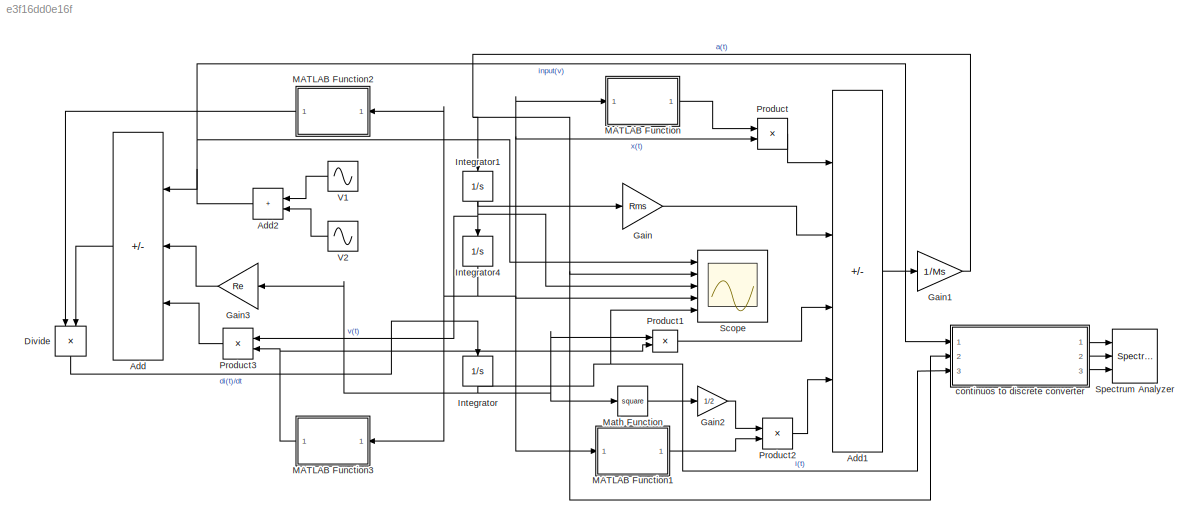
MODEL slx_e3f16dd0e16f
KIND model
CONFIG AbsTol = auto
CONFIG EnableMultiTasking = off
CONFIG FixedStep = auto
CONFIG MaxStep = auto
CONFIG MinStep = auto
CONFIG RelTol = 1e-3
CONFIG SampleTimeConstraint = Unconstrained
CONFIG SolverName = VariableStepAuto
CONFIG StartTime = 0.0
CONFIG StopTime = 4.5
WORKSPACE source: mxarray member
WORKSPACE Ms = 8e-06
WORKSPACE Re = 31.75
WORKSPACE Rms = 0.09
BLOCK [Sum] Add
  IconShape = rectangular
  Inputs = +--
  NameLocation = top
  Ports = [3, 1]
BLOCK [Sum] Add1
  IconShape = rectangular
  Inputs = --++
  Ports = [4, 1]
BLOCK [Sum] Add2
  IconShape = rectangular
  NameLocation = top
  Ports = [2, 1]
BLOCK [Product] Divide
  Inputs = /*
  NameLocation = left
  Ports = [2, 1]
BLOCK [Gain] Gain
  Gain = Rms
BLOCK [Gain] Gain1
  Gain = 1/Ms
BLOCK [Gain] Gain2
  Gain = 1/2
BLOCK [Gain] Gain3
  Gain = Re
  NameLocation = top
BLOCK [Integrator] Integrator
  NameLocation = left
  Ports = [1, 1]
BLOCK [Integrator] Integrator1
  NameLocation = left
  Ports = [1, 1]
BLOCK [Integrator] Integrator4
  NameLocation = left
  Ports = [1, 1]
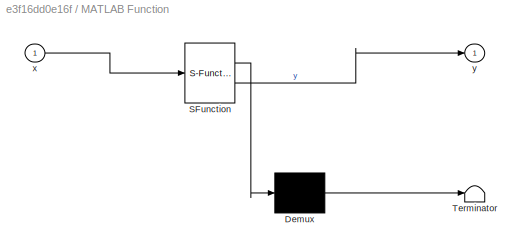
BLOCK [SubSystem] MATLAB Function
  ErrorFcn = Stateflow.Translate.translate
  PermitHierarchicalResolution = ExplicitOnly
  Ports = [1, 1]
  RequestExecContextInheritance = off
  SFBlockType = MATLAB Function
  TreatAsAtomicUnit = on
BLOCK [Demux] MATLAB Function/ Demux 
  Outputs = 1
  Ports = [1, 1]
BLOCK [S-Function] MATLAB Function/ SFunction 
  EnableBusSupport = on
  FunctionName = sf_sfun
  PortCounts = [1 2]
  Ports = [1, 2]
  SFcnIsStateOwnerBlock = off
  SFunctionDeploymentMode = off
  Tag = Stateflow S-Function 2
BLOCK [Terminator] MATLAB Function/ Terminator 
BLOCK [Inport] MATLAB Function/x
BLOCK [Outport] MATLAB Function/y
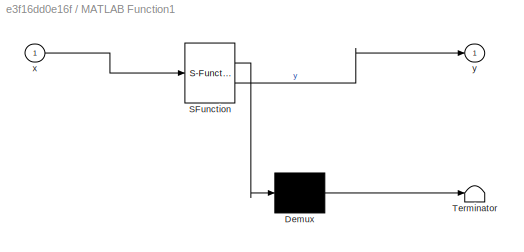
BLOCK [SubSystem] MATLAB Function1
  ErrorFcn = Stateflow.Translate.translate
  PermitHierarchicalResolution = ExplicitOnly
  Ports = [1, 1]
  RequestExecContextInheritance = off
  SFBlockType = MATLAB Function
  TreatAsAtomicUnit = on
BLOCK [Demux] MATLAB Function1/ Demux 
  Outputs = 1
  Ports = [1, 1]
BLOCK [S-Function] MATLAB Function1/ SFunction 
  EnableBusSupport = on
  FunctionName = sf_sfun
  PortCounts = [1 2]
  Ports = [1, 2]
  SFcnIsStateOwnerBlock = off
  SFunctionDeploymentMode = off
  Tag = Stateflow S-Function 1
BLOCK [Terminator] MATLAB Function1/ Terminator 
BLOCK [Inport] MATLAB Function1/x
BLOCK [Outport] MATLAB Function1/y
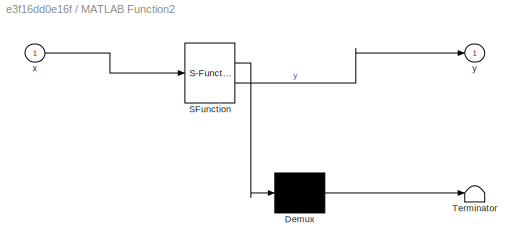
BLOCK [SubSystem] MATLAB Function2
  ErrorFcn = Stateflow.Translate.translate
  NameLocation = top
  PermitHierarchicalResolution = ExplicitOnly
  Ports = [1, 1]
  RequestExecContextInheritance = off
  SFBlockType = MATLAB Function
  TreatAsAtomicUnit = on
BLOCK [Demux] MATLAB Function2/ Demux 
  Outputs = 1
  Ports = [1, 1]
BLOCK [S-Function] MATLAB Function2/ SFunction 
  EnableBusSupport = on
  FunctionName = sf_sfun
  PortCounts = [1 2]
  Ports = [1, 2]
  SFcnIsStateOwnerBlock = off
  SFunctionDeploymentMode = off
  Tag = Stateflow S-Function 3
BLOCK [Terminator] MATLAB Function2/ Terminator 
BLOCK [Inport] MATLAB Function2/x
BLOCK [Outport] MATLAB Function2/y
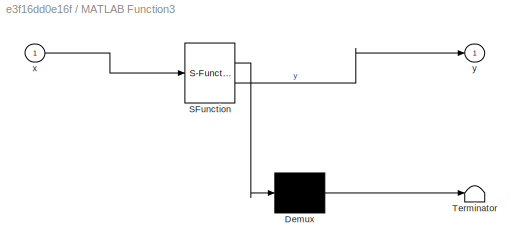
BLOCK [SubSystem] MATLAB Function3
  ErrorFcn = Stateflow.Translate.translate
  NameLocation = top
  PermitHierarchicalResolution = ExplicitOnly
  Ports = [1, 1]
  RequestExecContextInheritance = off
  SFBlockType = MATLAB Function
  TreatAsAtomicUnit = on
BLOCK [Demux] MATLAB Function3/ Demux 
  Outputs = 1
  Ports = [1, 1]
BLOCK [S-Function] MATLAB Function3/ SFunction 
  EnableBusSupport = on
  FunctionName = sf_sfun
  PortCounts = [1 2]
  Ports = [1, 2]
  SFcnIsStateOwnerBlock = off
  SFunctionDeploymentMode = off
  Tag = Stateflow S-Function 4
BLOCK [Terminator] MATLAB Function3/ Terminator 
BLOCK [Inport] MATLAB Function3/x
BLOCK [Outport] MATLAB Function3/y
BLOCK [Math] Math Function
  Operator = square
  Ports = [1, 1]
BLOCK [Product] Product
  Ports = [2, 1]
BLOCK [Product] Product1
  Ports = [2, 1]
BLOCK [Product] Product2
  Ports = [2, 1]
BLOCK [Product] Product3
  NameLocation = top
  Ports = [2, 1]
BLOCK [Scope] Scope
  Floating = off
  NumInputPorts = 5
  Ports = [5]
  ScopeSpecificationString = Simulink.scopes.TimeScopeBlockCfg('CurrentConfiguration', extmgr.ConfigurationSet(extmgr.Configuration('Core','General UI',true),extmgr.Configuration('Core','Source UI',true),extmgr.Configuration('Sources','WiredSimulink',true),extmgr.Configuration('Visuals','Time Domain',true,'SerializedDisplays',{struct('MinYLimReal','-1.47312','MaxYLimReal','1.47492','YLabelReal','','MinYLimMag','0.00000','MaxY...<+4237ch>
BLOCK [SpectrumAnalyzer] Spectrum Analyzer
  NumInputPorts = 3
  Ports = [3]
  ScopeSpecificationString = spbscopes.SpectrumAnalyzerBlockCfg('CurrentConfiguration', extmgr.ConfigurationSet(extmgr.Configuration('Core','General UI',true),extmgr.Configuration('Core','Source UI',true),extmgr.Configuration('Sources','WiredSimulink',true),extmgr.Configuration('Visuals','Spectrum',true,'AxesProperties',struct('Color',{[0 0 0],[0 0 0]},'XColor',{[0.686274509803922 0.686274509803922 0.686274509803922],[0.68627...<+2117ch>
BLOCK [Sin] V1
  Amplitude = 0.944
  Frequency = 2*pi*541
  NameLocation = top
  Ports = [0, 1]
  SampleTime = 0
BLOCK [Sin] V2
  Amplitude = 0.237
  Frequency = 2*pi*5447
  NameLocation = top
  Ports = [0, 1]
  SampleTime = 0
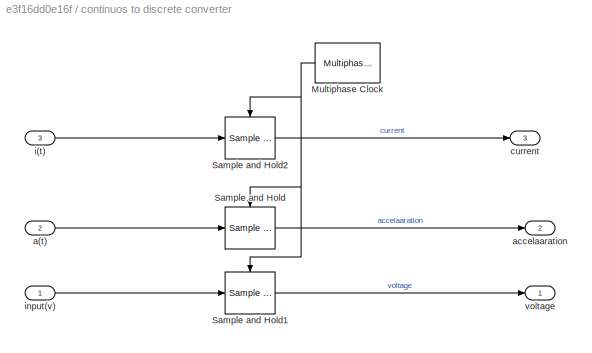
BLOCK [SubSystem] continuos to discrete converter 
  Ports = [3, 3]
  RequestExecContextInheritance = off
BLOCK [Reference] continuos to discrete converter /Multiphase Clock  REF=dspsrcs4/Multiphase Clock
  NameLocation = top
  Ports = [0, 1]
  SourceBlock = dspsrcs4/Multiphase Clock
  SourceProductBaseCode = DS
  SourceType = Multiphase Clock
BLOCK [Reference] continuos to discrete converter /Sample and Hold  REF=dspsigops/Sample
and Hold
  Ports = [1, 1, 0, 1]
  SourceBlock = dspsigops/Sample\nand Hold
  SourceProductBaseCode = DS
  SourceType = Sample and Hold
BLOCK [Reference] continuos to discrete converter /Sample and Hold1  REF=dspsigops/Sample
and Hold
  Ports = [1, 1, 0, 1]
  SourceBlock = dspsigops/Sample\nand Hold
  SourceProductBaseCode = DS
  SourceType = Sample and Hold
BLOCK [Reference] continuos to discrete converter /Sample and Hold2  REF=dspsigops/Sample
and Hold
  Ports = [1, 1, 0, 1]
  SourceBlock = dspsigops/Sample\nand Hold
  SourceProductBaseCode = DS
  SourceType = Sample and Hold
BLOCK [Inport] continuos to discrete converter /a(t)
  Port = 2
BLOCK [Outport] continuos to discrete converter /accelaaration
  NameLocation = top
  Port = 2
BLOCK [Outport] continuos to discrete converter /current
  Port = 3
BLOCK [Inport] continuos to discrete converter /i(t)
  Port = 3
BLOCK [Inport] continuos to discrete converter /input(v)
BLOCK [Outport] continuos to discrete converter /voltage
LINE Add1:1 -> Gain1:1
NET Add2:1 -> Add:1, Scope:1, continuos to discrete converter :1
LINE Add:1 -> Divide:2
LINE Divide:1 -> Integrator:1
NET Gain1:1 -> Integrator1:1, Scope:2, continuos to discrete converter :2
LINE Gain2:1 -> Product2:1
LINE Gain3:1 -> Add:2
LINE Gain:1 -> Add1:2
NET Integrator1:1 -> Gain:1, Integrator4:1, Product3:1, Scope:3
NET Integrator4:1 -> MATLAB Function1:1, MATLAB Function2:1, MATLAB Function3:1, MATLAB Function:1, Product:2, Scope:4
NET Integrator:1 -> Gain3:1, Math Function:1, Product1:1, Scope:5, continuos to discrete converter :3
LINE MATLAB Function1:1 -> Product2:2
LINE MATLAB Function2:1 -> Divide:1
NET MATLAB Function3:1 -> Product1:2, Product3:2
LINE MATLAB Function:1 -> Product:1
LINE Math Function:1 -> Gain2:1
LINE Product1:1 -> Add1:3
LINE Product2:1 -> Add1:4
LINE Product3:1 -> Add:3
LINE Product:1 -> Add1:1
LINE V1:1 -> Add2:1
LINE V2:1 -> Add2:2
NET continuos to discrete converter /Multiphase Clock:1 -> continuos to discrete converter /Sample and Hold1:trigger, continuos to discrete converter /Sample and Hold2:trigger, continuos to discrete converter /Sample and Hold:trigger
LINE continuos to discrete converter /Sample and Hold1:1 -> continuos to discrete converter /voltage:1
LINE continuos to discrete converter /Sample and Hold2:1 -> continuos to discrete converter /current:1
LINE continuos to discrete converter /Sample and Hold:1 -> continuos to discrete converter /accelaaration:1
LINE continuos to discrete converter /a(t):1 -> continuos to discrete converter /Sample and Hold:1
LINE continuos to discrete converter /i(t):1 -> continuos to discrete converter /Sample and Hold2:1
LINE continuos to discrete converter /input(v):1 -> continuos to discrete converter /Sample and Hold1:1
LINE continuos to discrete converter :1 -> Spectrum Analyzer:1
LINE continuos to discrete converter :2 -> Spectrum Analyzer:2
LINE continuos to discrete converter :3 -> Spectrum Analyzer:3
note: NET lines group one-source signal fan-out (src -> all destinations, sorted); 1:1 wires keep LINE
CHART MATLAB Function states=1 transitions=1
  STATE_LABEL 'eML_blk_kernel()'
  STATE_LABEL 'SCRIPT:\nfunction y = K(x)\n\ny = 41.75+(25.02*x) + (150.37*x^2)+(388.08*x^3)-(2382.67*x^4)+(74.63*x^5)+(128.09*x^6);\n'
CHART MATLAB Function2 states=1 transitions=1
  STATE_LABEL 'eML_blk_kernel()'
  STATE_LABEL 'SCRIPT:\nfunction y = Le(x)\n\ny = (6.01*10^-5)-(1.46*(10^-2)*x)+(0.61*x^2) +(1.31*10^4*x^3)+ (6.52*10^6*x^4)-(5.18*10^10*x^5)-(4.42*10^13*x^6);\n'
CHART MATLAB Function3 states=1 transitions=1
  STATE_LABEL 'eML_blk_kernel()'
  STATE_LABEL 'SCRIPT:\nfunction y = Bl(x)\n\ny = 0.23-(165*x)-(1.61*10^5*x^2)+ (6.49*10^8*x^3)-(5.97*10^12*x^4)+(1.06*10^15*x^5)+(2.14*10^19*x^6);\n\n'
CHART MATLAB Function1 states=1 transitions=1
  STATE_LABEL 'eML_blk_kernel()'
  STATE_LABEL 'SCRIPT:\nfunction y = Fr(x)\n\ny = -(1.46*(10^-2))+(2*0.61*x) +(3*1.31*10^4*x^2)+ (4*6.52*10^6*x^3)-(5*5.18*10^10*x^4)-(6*4.42*10^13*x^5);\n'
CHART  states=0 transitions=0
CHART  states=0 transitions=0
CHART  states=0 transitions=0
CHART  states=0 transitions=0
